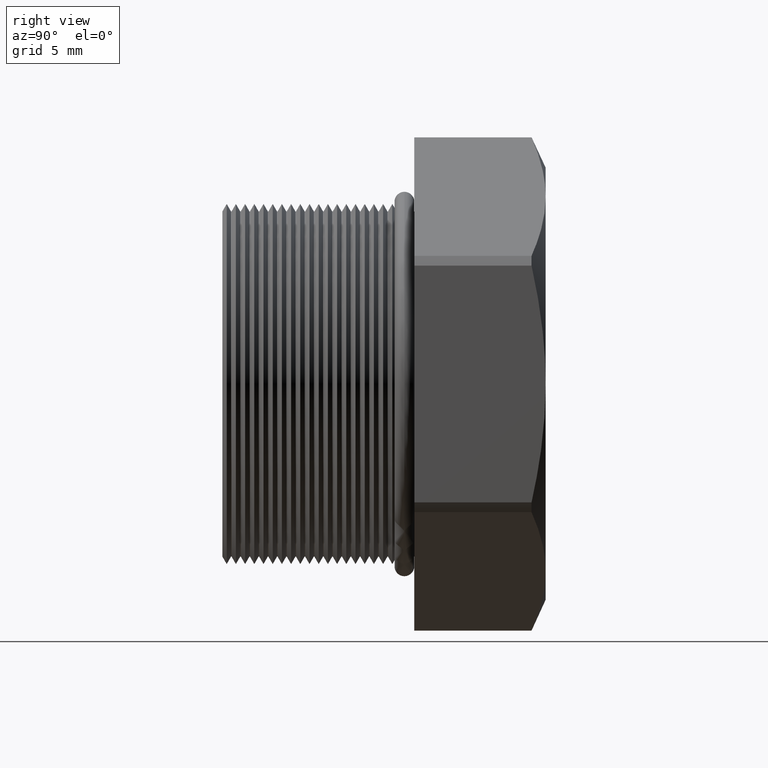
[diagram: clean part render]
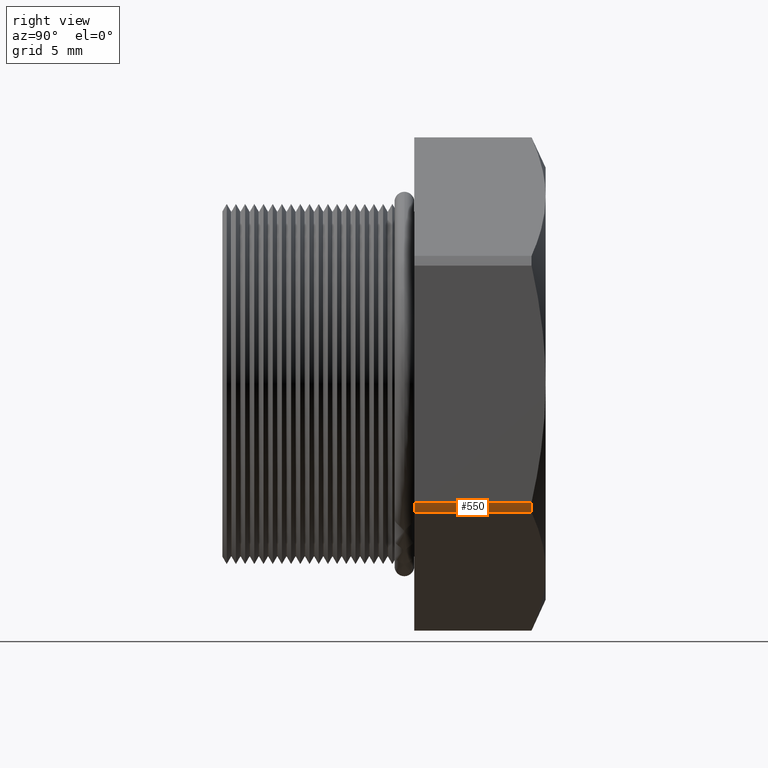
[diagram: same view with one face highlighted and labeled with its STEP entity id]
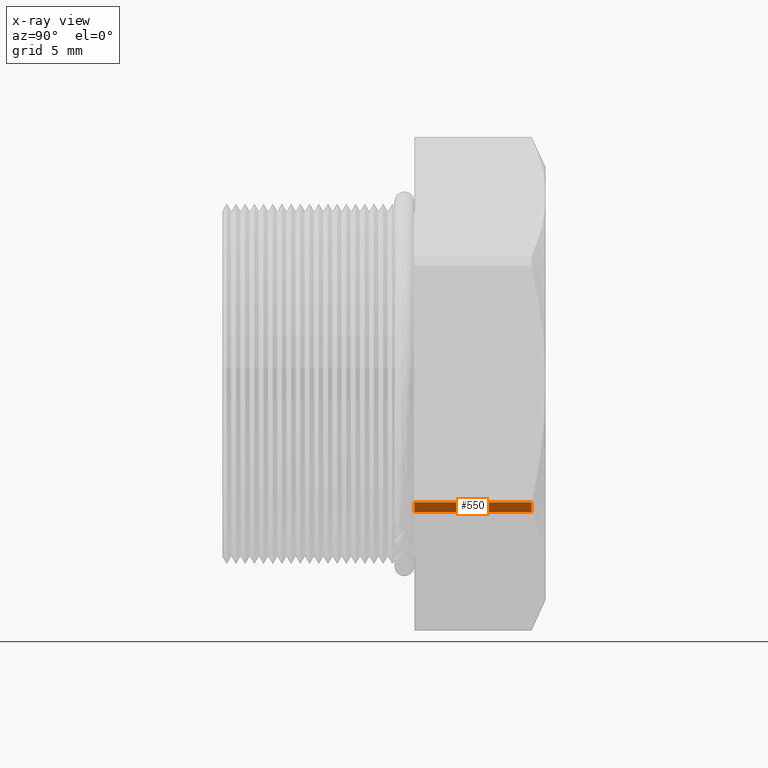
[diagram: x-ray of the same camera — body ghosted, the highlighted face saturated]
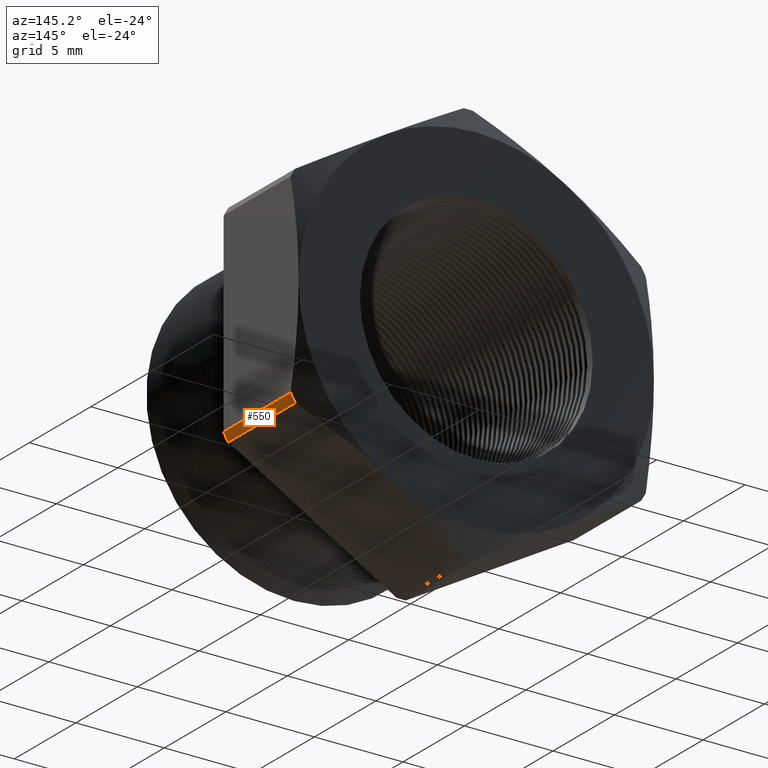
[diagram: same view with one face highlighted and labeled with its STEP entity id]
A machine part, right view. The second image highlights one B-rep face of the part: STEP entity #550.
The next image is the same camera in x-ray: the body ghosted, the highlighted face saturated — about 0% of this face is hidden behind the body in this view.
A second angle (auxiliary view) of the same face is appended — the face is thin or edge-on in the first view.
In plain terms, the highlighted cylindrical surface (partial cylindrical patch) has radius 11.4376 mm, axis along (-0, -1, -0).
Its self-contained STEP definition (entity closure, byte-faithful):
#521 = ORIENTED_EDGE ( 'NONE', *, *, #673, .T. ) ;
#525 = VERTEX_POINT ( 'NONE', #5250 ) ;
#528 = VERTEX_POINT ( 'NONE', #5247 ) ;
#531 = EDGE_LOOP ( 'NONE', ( #533, #521, #635, #614 ) ) ;
#533 = ORIENTED_EDGE ( 'NONE', *, *, #535, .T. ) ;
#535 = EDGE_CURVE ( 'NONE', #528, #525, #5303, .T. ) ;
#550 = ADVANCED_FACE ( 'NONE', ( #5278 ), #5276, .T. ) ;
#614 = ORIENTED_EDGE ( 'NONE', *, *, #621, .F. ) ;
#621 = EDGE_CURVE ( 'NONE', #528, #624, #5458, .T. ) ;
#624 = VERTEX_POINT ( 'NONE', #5453 ) ;
#633 = EDGE_CURVE ( 'NONE', #671, #624, #5435, .T. ) ;
#635 = ORIENTED_EDGE ( 'NONE', *, *, #633, .T. ) ;
#671 = VERTEX_POINT ( 'NONE', #5552 ) ;
#673 = EDGE_CURVE ( 'NONE', #525, #671, #5546, .T. ) ;
#5247 = CARTESIAN_POINT ( 'NONE',  ( 0.3847399997329628000, 0.1675548905829479500, -0.2339769702459620100 ) ) ;
#5250 = CARTESIAN_POINT ( 'NONE',  ( 0.3847399997329629100, 0.3817680770869766300, -0.2339769702459618100 ) ) ;
#5276 = CYLINDRICAL_SURFACE ( 'NONE', #5339, 0.4502999999999999800 ) ;
#5277 = CARTESIAN_POINT ( 'NONE',  ( 0.0000000000000000000, 0.0000000000000000000, 0.0000000000000000000 ) ) ;
#5278 = FACE_OUTER_BOUND ( 'NONE', #531, .T. ) ;
#5300 = DIRECTION ( 'NONE',  ( 0.0000000000000000000, 1.000000000000000000, 0.0000000000000000000 ) ) ;
#5301 = VECTOR ( 'NONE', #5300, 39.37007874015748100 ) ;
#5302 = CARTESIAN_POINT ( 'NONE',  ( 0.3847399997329629100, 0.0000000000000000000, -0.2339769702459618100 ) ) ;
#5303 = LINE ( 'NONE', #5302, #5301 ) ;
#5337 = DIRECTION ( 'NONE',  ( 0.0000000000000000000, 0.0000000000000000000, -1.000000000000000000 ) ) ;
#5338 = DIRECTION ( 'NONE',  ( -0.0000000000000000000, -1.000000000000000000, -0.0000000000000000000 ) ) ;
#5339 = AXIS2_PLACEMENT_3D ( 'NONE', #5277, #5338, #5337 ) ;
#5434 = CARTESIAN_POINT ( 'NONE',  ( 0.3950000000000000200, 0.0000000000000000000, -0.2162061284977832000 ) ) ;
#5435 = LINE ( 'NONE', #5434, #5496 ) ;
#5453 = CARTESIAN_POINT ( 'NONE',  ( 0.3950000000000000200, 0.1675548905829479500, -0.2162061284977832000 ) ) ;
#5454 = DIRECTION ( 'NONE',  ( 0.0000000000000000000, 0.0000000000000000000, -1.000000000000000000 ) ) ;
#5455 = DIRECTION ( 'NONE',  ( -0.0000000000000000000, -1.000000000000000000, -0.0000000000000000000 ) ) ;
#5456 = CARTESIAN_POINT ( 'NONE',  ( 0.0000000000000000000, 0.1675548905829479500, 0.0000000000000000000 ) ) ;
#5457 = AXIS2_PLACEMENT_3D ( 'NONE', #5456, #5455, #5454 ) ;
#5458 = CIRCLE ( 'NONE', #5457, 0.4502999999999999800 ) ;
#5495 = DIRECTION ( 'NONE',  ( -0.0000000000000000000, -1.000000000000000000, -0.0000000000000000000 ) ) ;
#5496 = VECTOR ( 'NONE', #5495, 39.37007874015748100 ) ;
#5542 = DIRECTION ( 'NONE',  ( 0.0000000000000000000, 0.0000000000000000000, -1.000000000000000000 ) ) ;
#5543 = DIRECTION ( 'NONE',  ( 0.0000000000000000000, -1.000000000000000000, 0.0000000000000000000 ) ) ;
#5544 = CARTESIAN_POINT ( 'NONE',  ( 0.0000000000000000000, 0.3817680770869766300, 0.0000000000000000000 ) ) ;
#5545 = AXIS2_PLACEMENT_3D ( 'NONE', #5544, #5543, #5542 ) ;
#5546 = CIRCLE ( 'NONE', #5545, 0.4502999999999999800 ) ;
#5552 = CARTESIAN_POINT ( 'NONE',  ( 0.3950000000000000200, 0.3817680770869807900, -0.2162061284977874500 ) ) ;